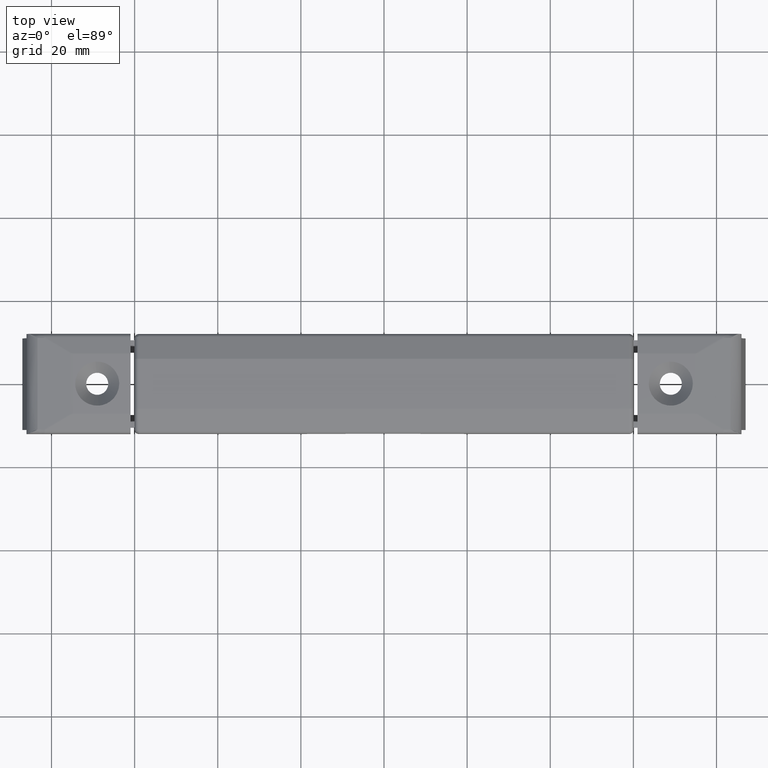
[diagram: clean part render]
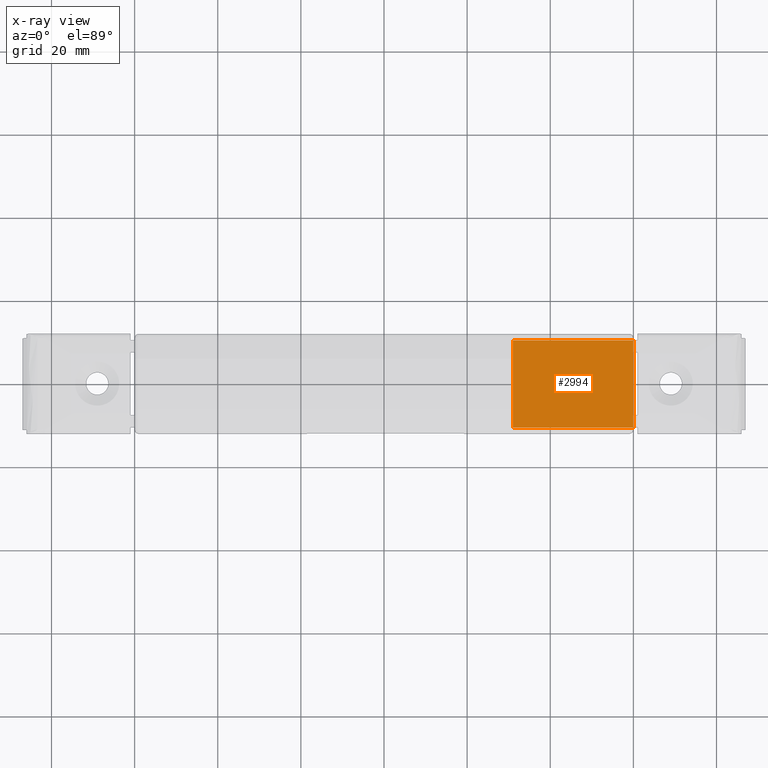
[diagram: x-ray — body ghosted, one internal face saturated and labeled with its STEP entity id]
A machine part, top view, then the same camera in x-ray: the body is ghosted and one INTERNAL B-rep face — a face not visible from any outside direction — is saturated and labeled: STEP entity #2994.
In plain terms, the highlighted face is a freeform B-spline surface patch.
Its self-contained STEP definition (entity closure, byte-faithful):
#2892=CARTESIAN_POINT('',(60.0,-10.500000000000000,2.0));
#2893=VERTEX_POINT('',#2892);
#2894=CARTESIAN_POINT('',(31.0,-10.500000000000000,2.0));
#2895=VERTEX_POINT('',#2894);
#2896=CARTESIAN_POINT('',(60.0,-10.500000000000000,2.0));
#2897=CARTESIAN_POINT('',(31.0,-10.500000000000000,2.0));
#2898=QUASI_UNIFORM_CURVE('',1,(#2896,#2897),.UNSPECIFIED.,.F.,.U.);
#2899=EDGE_CURVE('',#2893,#2895,#2898,.T.);
#2928=CARTESIAN_POINT('',(60.0,10.500000000000000,2.0));
#2929=VERTEX_POINT('',#2928);
#2944=CARTESIAN_POINT('',(31.0,10.500000000000000,2.0));
#2945=VERTEX_POINT('',#2944);
#2951=CARTESIAN_POINT('',(60.0,10.500000000000000,2.0));
#2952=CARTESIAN_POINT('',(31.0,10.500000000000000,2.0));
#2953=QUASI_UNIFORM_CURVE('',1,(#2951,#2952),.UNSPECIFIED.,.F.,.U.);
#2954=EDGE_CURVE('',#2929,#2945,#2953,.T.);
#2965=CARTESIAN_POINT('',(31.0,10.500000000000000,2.0));
#2966=CARTESIAN_POINT('',(31.0,-10.500000000000000,2.0));
#2967=QUASI_UNIFORM_CURVE('',1,(#2965,#2966),.UNSPECIFIED.,.F.,.U.);
#2968=EDGE_CURVE('',#2945,#2895,#2967,.T.);
#2979=CARTESIAN_POINT('',(29.551450056207621,-11.548949959297930,2.0));
#2980=CARTESIAN_POINT('',(61.448550721632976,-11.548949959297930,2.0));
#2981=CARTESIAN_POINT('',(29.551450056207621,11.548950522561819,2.0));
#2982=CARTESIAN_POINT('',(61.448550721632976,11.548950522561819,2.0));
#2983=B_SPLINE_SURFACE_WITH_KNOTS('',1,1,((#2979,#2981),(#2980,#2982)),.UNSPECIFIED.,.F.,.F.,.U.,(2,2),(2,2),(0.0,31.897100665425359),(0.0,23.097900481859750),.UNSPECIFIED.);
#2984=ORIENTED_EDGE('',*,*,#2954,.T.);
#2985=ORIENTED_EDGE('',*,*,#2968,.T.);
#2986=ORIENTED_EDGE('',*,*,#2899,.F.);
#2987=CARTESIAN_POINT('',(60.0,10.500000000000000,2.0));
#2988=CARTESIAN_POINT('',(60.0,-10.500000000000000,2.0));
#2989=QUASI_UNIFORM_CURVE('',1,(#2987,#2988),.UNSPECIFIED.,.F.,.U.);
#2990=EDGE_CURVE('',#2929,#2893,#2989,.T.);
#2991=ORIENTED_EDGE('',*,*,#2990,.F.);
#2992=EDGE_LOOP('',(#2984,#2985,#2986,#2991));
#2993=FACE_OUTER_BOUND('',#2992,.T.);
#2994=ADVANCED_FACE('',(#2993),#2983,.T.);